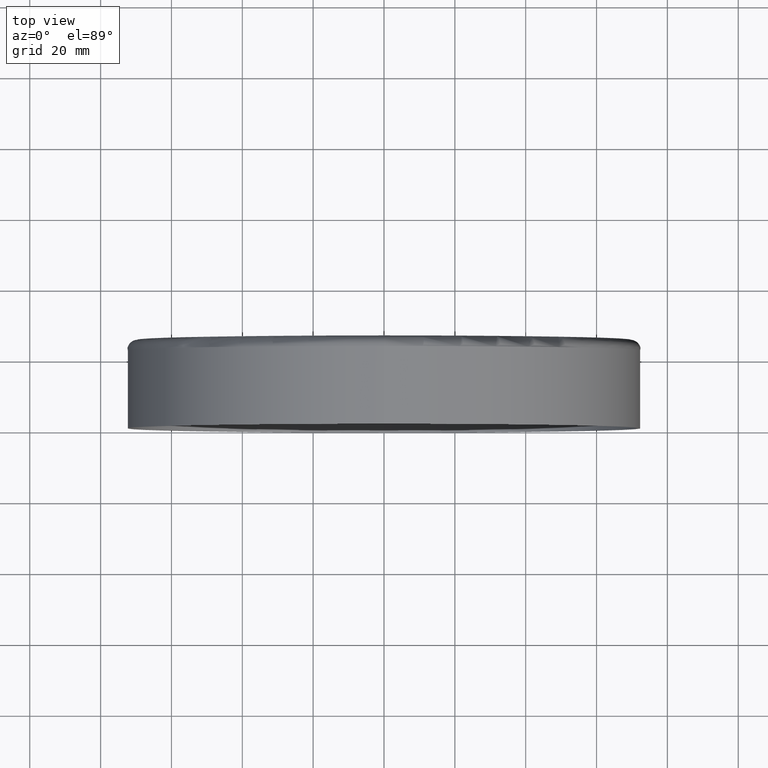
[diagram: clean part render]
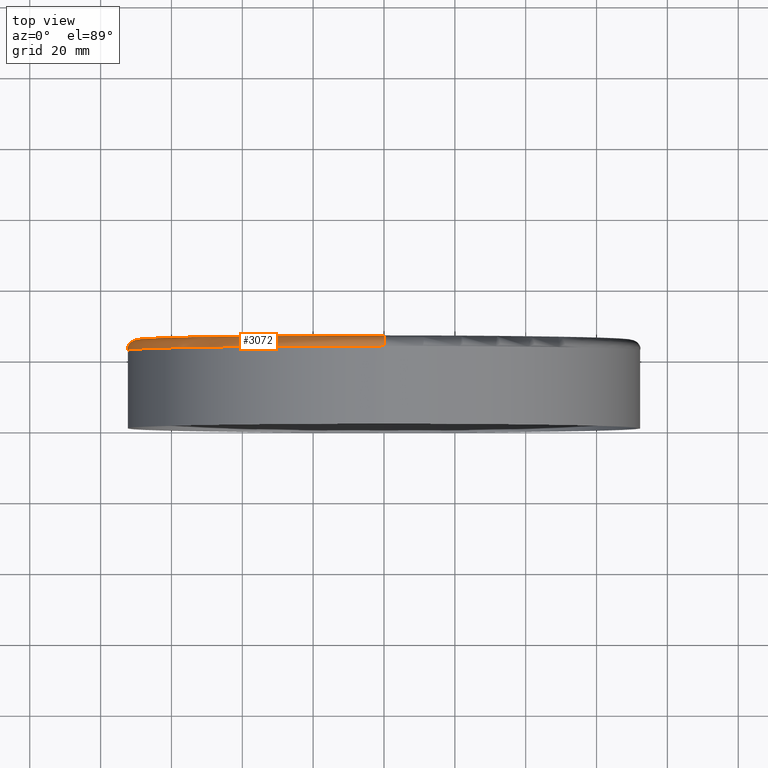
[diagram: same view with one face highlighted and labeled with its STEP entity id]
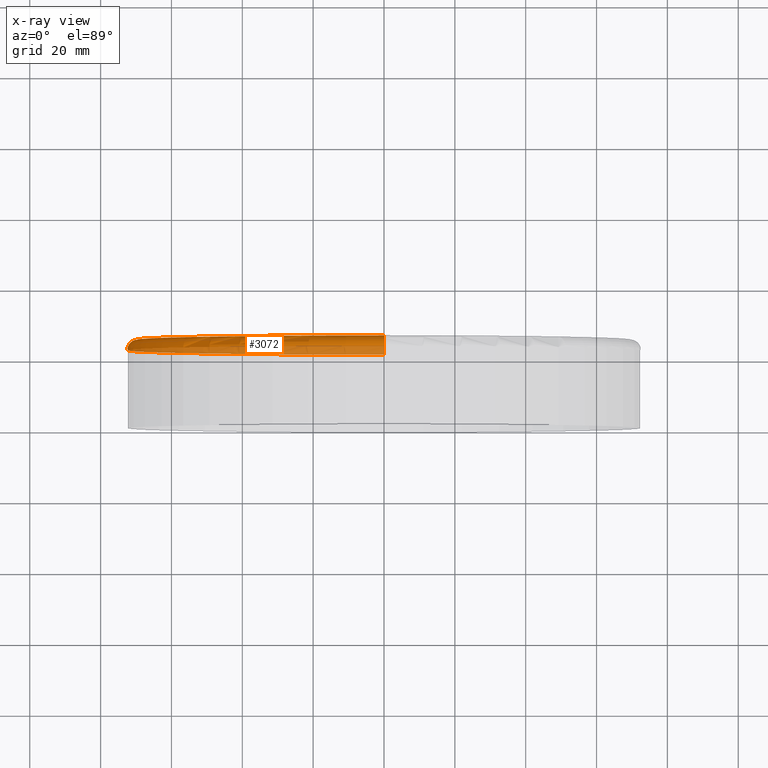
[diagram: x-ray of the same camera — body ghosted, the highlighted face saturated]
A machine part, top view. The second image highlights one B-rep face of the part: STEP entity #3072.
The next image is the same camera in x-ray: the body ghosted, the highlighted face saturated — about 41% of this face is hidden behind the body in this view.
In plain terms, the highlighted toroidal blend (fillet) surface has major radius 69.5 mm and minor (blend) radius 3 mm.
Its self-contained STEP definition (entity closure, byte-faithful):
#300 = CARTESIAN_POINT ( 'NONE',  ( 0.000000000000000000, 25.00000000000000000, 0.000000000000000000 ) ) ;
#542 = CARTESIAN_POINT ( 'NONE',  ( 8.694992273946206563E-15, 25.00000000000000000, 69.49999999999998579 ) ) ;
#740 = TOROIDAL_SURFACE ( 'NONE', #5468, 69.49999999999998579, 3.000000000000000888 ) ;
#1244 = CARTESIAN_POINT ( 'NONE',  ( 8.878689293818309285E-15, 22.00000000000000355, 72.50000000000000000 ) ) ;
#1363 = ORIENTED_EDGE ( 'NONE', *, *, #7505, .T. ) ;
#1848 = EDGE_CURVE ( 'NONE', #7972, #5098, #16114, .T. ) ;
#1877 = ORIENTED_EDGE ( 'NONE', *, *, #12558, .F. ) ;
#2333 = AXIS2_PLACEMENT_3D ( 'NONE', #4530, #4409, #10938 ) ;
#2963 = CIRCLE ( 'NONE', #11151, 3.000000000000002665 ) ;
#3072 = ADVANCED_FACE ( 'NONE', ( #12485 ), #740, .T. ) ;
#4085 = DIRECTION ( 'NONE',  ( -0.000000000000000000, -1.000000000000000000, -0.000000000000000000 ) ) ;
#4409 = DIRECTION ( 'NONE',  ( -1.000000000000000000, 0.000000000000000000, 0.000000000000000000 ) ) ;
#4530 = CARTESIAN_POINT ( 'NONE',  ( 0.000000000000000000, 22.00000000000000355, -69.49999999999998579 ) ) ;
#5098 = VERTEX_POINT ( 'NONE', #16115 ) ;
#5262 = CARTESIAN_POINT ( 'NONE',  ( 0.000000000000000000, 22.00000000000000355, 0.000000000000000000 ) ) ;
#5468 = AXIS2_PLACEMENT_3D ( 'NONE', #7026, #15918, #9684 ) ;
#6087 = VERTEX_POINT ( 'NONE', #13775 ) ;
#6526 = CARTESIAN_POINT ( 'NONE',  ( 8.511295254074103841E-15, 22.00000000000000355, 69.49999999999998579 ) ) ;
#6539 = CIRCLE ( 'NONE', #2333, 3.000000000000002665 ) ;
#7026 = CARTESIAN_POINT ( 'NONE',  ( 0.000000000000000000, 22.00000000000000355, 0.000000000000000000 ) ) ;
#7505 = EDGE_CURVE ( 'NONE', #5098, #6087, #6539, .T. ) ;
#7972 = VERTEX_POINT ( 'NONE', #542 ) ;
#8935 = VERTEX_POINT ( 'NONE', #1244 ) ;
#9100 = ORIENTED_EDGE ( 'NONE', *, *, #1848, .T. ) ;
#9204 = CIRCLE ( 'NONE', #14832, 72.50000000000000000 ) ;
#9269 = EDGE_LOOP ( 'NONE', ( #1877, #9100, #1363, #11941 ) ) ;
#9684 = DIRECTION ( 'NONE',  ( 0.000000000000000000, 0.000000000000000000, -1.000000000000000000 ) ) ;
#10938 = DIRECTION ( 'NONE',  ( 0.000000000000000000, 0.000000000000000000, 1.000000000000000000 ) ) ;
#11151 = AXIS2_PLACEMENT_3D ( 'NONE', #6526, #14484, #11705 ) ;
#11705 = DIRECTION ( 'NONE',  ( -1.224646799147354440E-16, 0.000000000000000000, -1.000000000000000000 ) ) ;
#11721 = AXIS2_PLACEMENT_3D ( 'NONE', #300, #4085, #14453 ) ;
#11941 = ORIENTED_EDGE ( 'NONE', *, *, #14893, .F. ) ;
#12485 = FACE_OUTER_BOUND ( 'NONE', #9269, .T. ) ;
#12558 = EDGE_CURVE ( 'NONE', #7972, #8935, #2963, .T. ) ;
#13775 = CARTESIAN_POINT ( 'NONE',  ( 0.000000000000000000, 22.00000000000000355, -72.50000000000000000 ) ) ;
#14453 = DIRECTION ( 'NONE',  ( 0.000000000000000000, 0.000000000000000000, -1.000000000000000000 ) ) ;
#14484 = DIRECTION ( 'NONE',  ( 1.000000000000000000, 0.000000000000000000, -1.224646799147353207E-16 ) ) ;
#14832 = AXIS2_PLACEMENT_3D ( 'NONE', #5262, #15592, #15547 ) ;
#14893 = EDGE_CURVE ( 'NONE', #8935, #6087, #9204, .T. ) ;
#15547 = DIRECTION ( 'NONE',  ( 0.000000000000000000, 0.000000000000000000, -1.000000000000000000 ) ) ;
#15592 = DIRECTION ( 'NONE',  ( -0.000000000000000000, -1.000000000000000000, -0.000000000000000000 ) ) ;
#15918 = DIRECTION ( 'NONE',  ( -0.000000000000000000, -1.000000000000000000, -0.000000000000000000 ) ) ;
#16114 = CIRCLE ( 'NONE', #11721, 69.49999999999998579 ) ;
#16115 = CARTESIAN_POINT ( 'NONE',  ( 0.000000000000000000, 25.00000000000000000, -69.49999999999998579 ) ) ;